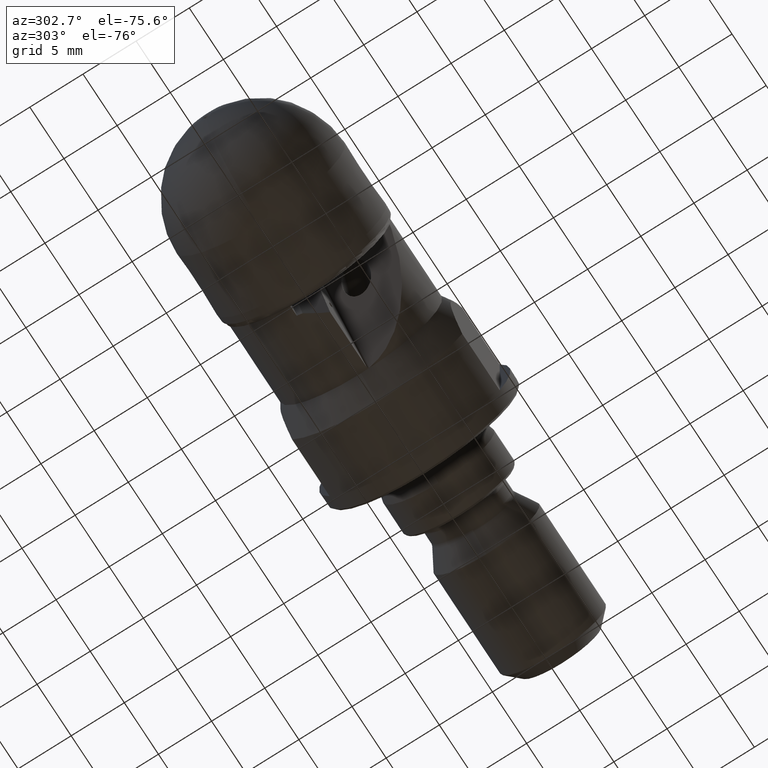
[diagram: clean part render]
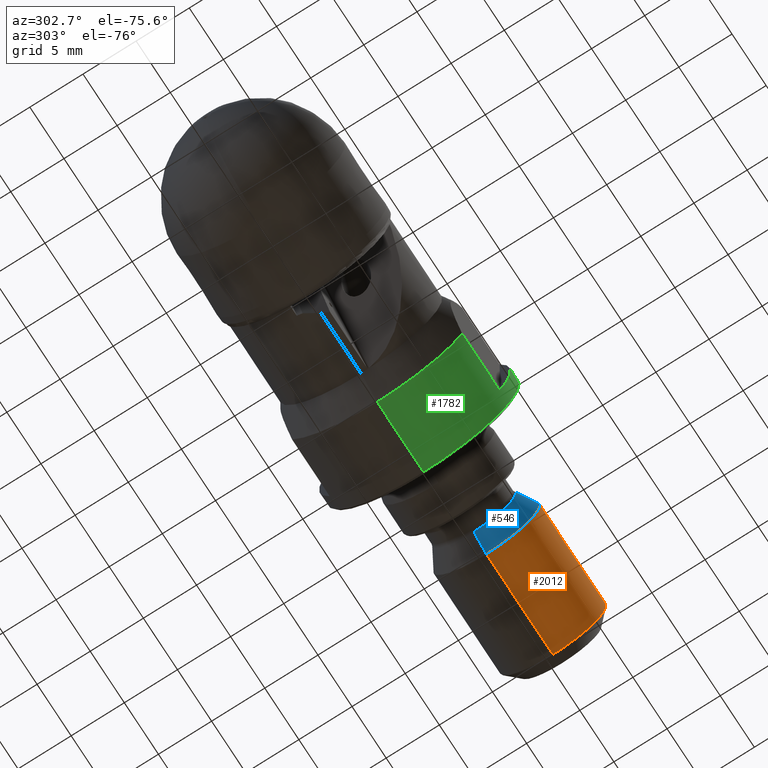
[diagram: same view with three faces highlighted in distinct colors, each labeled with its STEP entity id]
A machine part, auxiliary view with three faces highlighted in distinct colors.
Their STEP definitions:

[orange] entity #2012 — the highlighted cylindrical surface (partial cylindrical patch) has radius 5 mm, axis along (-1, 0, 0).
#12 = CARTESIAN_POINT ( 'NONE',  ( 51.06688199999999966, 0.0000000000000000000, 0.0000000000000000000 ) ) ;
#234 = CARTESIAN_POINT ( 'NONE',  ( -4.762142644779060241, 0.0000000000000000000, 5.000000000000000000 ) ) ;
#507 = VERTEX_POINT ( 'NONE', #1269 ) ;
#510 = DIRECTION ( 'NONE',  ( 0.0000000000000000000, 0.0000000000000000000, 1.000000000000000000 ) ) ;
#539 = DIRECTION ( 'NONE',  ( -1.000000000000000000, 0.0000000000000000000, 0.0000000000000000000 ) ) ;
#901 = VERTEX_POINT ( 'NONE', #3779 ) ;
#947 = ORIENTED_EDGE ( 'NONE', *, *, #3159, .T. ) ;
#988 = CYLINDRICAL_SURFACE ( 'NONE', #3228, 5.000000000000000000 ) ;
#989 = EDGE_LOOP ( 'NONE', ( #1167, #947, #1950, #2823 ) ) ;
#1036 = CIRCLE ( 'NONE', #3923, 5.000000000000000000 ) ;
#1089 = VECTOR ( 'NONE', #2411, 1000.000000000000000 ) ;
#1107 = CARTESIAN_POINT ( 'NONE',  ( -4.762142644779060241, 0.0000000000000000000, 0.0000000000000000000 ) ) ;
#1167 = ORIENTED_EDGE ( 'NONE', *, *, #3957, .F. ) ;
#1269 = CARTESIAN_POINT ( 'NONE',  ( 41.31688199999999966, 0.0000000000000000000, -5.000000000000000000 ) ) ;
#1282 = EDGE_CURVE ( 'NONE', #507, #3787, #2702, .T. ) ;
#1669 = EDGE_CURVE ( 'NONE', #2758, #3787, #3920, .T. ) ;
#1950 = ORIENTED_EDGE ( 'NONE', *, *, #1669, .T. ) ;
#2012 = ADVANCED_FACE ( 'NONE', ( #3103 ), #988, .T. ) ;
#2014 = CARTESIAN_POINT ( 'NONE',  ( 41.31688199999999966, 0.0000000000000000000, 0.0000000000000000000 ) ) ;
#2411 = DIRECTION ( 'NONE',  ( -1.000000000000000000, 0.0000000000000000000, 0.0000000000000000000 ) ) ;
#2676 = VECTOR ( 'NONE', #539, 1000.000000000000000 ) ;
#2702 = CIRCLE ( 'NONE', #3239, 5.000000000000000000 ) ;
#2730 = LINE ( 'NONE', #3950, #1089 ) ;
#2758 = VERTEX_POINT ( 'NONE', #2768 ) ;
#2768 = CARTESIAN_POINT ( 'NONE',  ( 51.06688199999999966, 0.0000000000000000000, 5.000000000000000000 ) ) ;
#2823 = ORIENTED_EDGE ( 'NONE', *, *, #1282, .F. ) ;
#3098 = DIRECTION ( 'NONE',  ( 0.0000000000000000000, 0.0000000000000000000, 1.000000000000000000 ) ) ;
#3103 = FACE_OUTER_BOUND ( 'NONE', #989, .T. ) ;
#3159 = EDGE_CURVE ( 'NONE', #901, #2758, #1036, .T. ) ;
#3228 = AXIS2_PLACEMENT_3D ( 'NONE', #1107, #3931, #510 ) ;
#3239 = AXIS2_PLACEMENT_3D ( 'NONE', #2014, #3865, #3578 ) ;
#3355 = DIRECTION ( 'NONE',  ( -1.000000000000000000, 0.0000000000000000000, 0.0000000000000000000 ) ) ;
#3541 = CARTESIAN_POINT ( 'NONE',  ( 41.31688199999999966, 6.123233995736766282E-16, 5.000000000000000000 ) ) ;
#3578 = DIRECTION ( 'NONE',  ( 0.0000000000000000000, 0.0000000000000000000, 1.000000000000000000 ) ) ;
#3779 = CARTESIAN_POINT ( 'NONE',  ( 51.06688199999999966, 6.123233995736766282E-16, -5.000000000000000000 ) ) ;
#3787 = VERTEX_POINT ( 'NONE', #3541 ) ;
#3865 = DIRECTION ( 'NONE',  ( -1.000000000000000000, 0.0000000000000000000, 0.0000000000000000000 ) ) ;
#3920 = LINE ( 'NONE', #234, #2676 ) ;
#3923 = AXIS2_PLACEMENT_3D ( 'NONE', #12, #3355, #3098 ) ;
#3931 = DIRECTION ( 'NONE',  ( -1.000000000000000000, 0.0000000000000000000, 0.0000000000000000000 ) ) ;
#3950 = CARTESIAN_POINT ( 'NONE',  ( -4.762142644779060241, 6.123233995736766282E-16, -5.000000000000000000 ) ) ;
#3957 = EDGE_CURVE ( 'NONE', #901, #507, #2730, .T. ) ;

[blue] entity #546 — the highlighted conical surface has half-angle 30 deg.
#15 = AXIS2_PLACEMENT_3D ( 'NONE', #2337, #509, #781 ) ;
#497 = VERTEX_POINT ( 'NONE', #1320 ) ;
#507 = VERTEX_POINT ( 'NONE', #1269 ) ;
#509 = DIRECTION ( 'NONE',  ( 1.000000000000000000, 0.0000000000000000000, 0.0000000000000000000 ) ) ;
#529 = FACE_OUTER_BOUND ( 'NONE', #3893, .T. ) ;
#540 = DIRECTION ( 'NONE',  ( 0.8660254037844382635, 6.123233995736773431E-17, 0.5000000000000005551 ) ) ;
#546 = ADVANCED_FACE ( 'NONE', ( #529 ), #1991, .T. ) ;
#580 = CIRCLE ( 'NONE', #708, 3.930384757729339817 ) ;
#617 = VECTOR ( 'NONE', #2875, 1000.000000000000114 ) ;
#623 = DIRECTION ( 'NONE',  ( -1.000000000000000000, 0.0000000000000000000, 0.0000000000000000000 ) ) ;
#692 = LINE ( 'NONE', #1917, #617 ) ;
#708 = AXIS2_PLACEMENT_3D ( 'NONE', #3731, #623, #930 ) ;
#747 = ORIENTED_EDGE ( 'NONE', *, *, #1282, .T. ) ;
#781 = DIRECTION ( 'NONE',  ( 0.0000000000000000000, 0.0000000000000000000, -1.000000000000000000 ) ) ;
#930 = DIRECTION ( 'NONE',  ( 0.0000000000000000000, 0.0000000000000000000, 1.000000000000000000 ) ) ;
#1082 = LINE ( 'NONE', #3298, #1904 ) ;
#1269 = CARTESIAN_POINT ( 'NONE',  ( 41.31688199999999966, 0.0000000000000000000, -5.000000000000000000 ) ) ;
#1282 = EDGE_CURVE ( 'NONE', #507, #3787, #2702, .T. ) ;
#1320 = CARTESIAN_POINT ( 'NONE',  ( 39.46425405583712376, 0.0000000000000000000, 3.930384757729339817 ) ) ;
#1416 = ORIENTED_EDGE ( 'NONE', *, *, #1497, .T. ) ;
#1497 = EDGE_CURVE ( 'NONE', #3278, #507, #692, .T. ) ;
#1695 = CARTESIAN_POINT ( 'NONE',  ( 39.46425405583712376, 4.813333112970779065E-16, -3.930384757729339817 ) ) ;
#1904 = VECTOR ( 'NONE', #540, 1000.000000000000114 ) ;
#1914 = EDGE_CURVE ( 'NONE', #3278, #497, #580, .T. ) ;
#1917 = CARTESIAN_POINT ( 'NONE',  ( 41.31688199999999966, 0.0000000000000000000, -5.000000000000000000 ) ) ;
#1991 = CONICAL_SURFACE ( 'NONE', #15, 5.000000000000000000, 0.5235987755982994818 ) ;
#2014 = CARTESIAN_POINT ( 'NONE',  ( 41.31688199999999966, 0.0000000000000000000, 0.0000000000000000000 ) ) ;
#2226 = ORIENTED_EDGE ( 'NONE', *, *, #2654, .F. ) ;
#2337 = CARTESIAN_POINT ( 'NONE',  ( 41.31688199999999966, 0.0000000000000000000, 0.0000000000000000000 ) ) ;
#2623 = ORIENTED_EDGE ( 'NONE', *, *, #1914, .F. ) ;
#2654 = EDGE_CURVE ( 'NONE', #497, #3787, #1082, .T. ) ;
#2702 = CIRCLE ( 'NONE', #3239, 5.000000000000000000 ) ;
#2875 = DIRECTION ( 'NONE',  ( 0.8660254037844382635, 0.0000000000000000000, -0.5000000000000005551 ) ) ;
#3239 = AXIS2_PLACEMENT_3D ( 'NONE', #2014, #3865, #3578 ) ;
#3278 = VERTEX_POINT ( 'NONE', #1695 ) ;
#3298 = CARTESIAN_POINT ( 'NONE',  ( 41.31688199999999966, 6.123233995736766282E-16, 5.000000000000000000 ) ) ;
#3541 = CARTESIAN_POINT ( 'NONE',  ( 41.31688199999999966, 6.123233995736766282E-16, 5.000000000000000000 ) ) ;
#3578 = DIRECTION ( 'NONE',  ( 0.0000000000000000000, 0.0000000000000000000, 1.000000000000000000 ) ) ;
#3731 = CARTESIAN_POINT ( 'NONE',  ( 39.46425405583712376, 0.0000000000000000000, 0.0000000000000000000 ) ) ;
#3787 = VERTEX_POINT ( 'NONE', #3541 ) ;
#3865 = DIRECTION ( 'NONE',  ( -1.000000000000000000, 0.0000000000000000000, 0.0000000000000000000 ) ) ;
#3893 = EDGE_LOOP ( 'NONE', ( #2226, #2623, #1416, #747 ) ) ;

[green] entity #1782 — the highlighted cylindrical surface (partial cylindrical patch) has radius 9 mm, axis along (-1, 0, 0).
#42 = ORIENTED_EDGE ( 'NONE', *, *, #3334, .T. ) ;
#76 = DIRECTION ( 'NONE',  ( -1.000000000000000000, 0.0000000000000000000, 0.0000000000000000000 ) ) ;
#124 = VECTOR ( 'NONE', #76, 1000.000000000000000 ) ;
#151 = LINE ( 'NONE', #2918, #3860 ) ;
#197 = EDGE_CURVE ( 'NONE', #1910, #3304, #3936, .T. ) ;
#210 = VECTOR ( 'NONE', #2644, 1000.000000000000000 ) ;
#226 = AXIS2_PLACEMENT_3D ( 'NONE', #950, #657, #2101 ) ;
#324 = CIRCLE ( 'NONE', #2555, 9.000000000000000000 ) ;
#336 = CYLINDRICAL_SURFACE ( 'NONE', #226, 9.000000000000000000 ) ;
#338 = CARTESIAN_POINT ( 'NONE',  ( -4.762142644779060241, 1.102182119232617714E-15, -9.000000000000000000 ) ) ;
#354 = CARTESIAN_POINT ( 'NONE',  ( 32.11688199999999682, 0.0000000000000000000, 0.0000000000000000000 ) ) ;
#378 = LINE ( 'NONE', #338, #124 ) ;
#410 = VECTOR ( 'NONE', #2971, 1000.000000000000000 ) ;
#648 = VERTEX_POINT ( 'NONE', #2070 ) ;
#657 = DIRECTION ( 'NONE',  ( -1.000000000000000000, 0.0000000000000000000, 0.0000000000000000000 ) ) ;
#667 = ORIENTED_EDGE ( 'NONE', *, *, #1873, .F. ) ;
#868 = LINE ( 'NONE', #1730, #410 ) ;
#904 = FACE_OUTER_BOUND ( 'NONE', #2292, .T. ) ;
#923 = ORIENTED_EDGE ( 'NONE', *, *, #1389, .F. ) ;
#949 = DIRECTION ( 'NONE',  ( 0.0000000000000000000, 0.0000000000000000000, -1.000000000000000000 ) ) ;
#950 = CARTESIAN_POINT ( 'NONE',  ( -4.762142644779060241, 0.0000000000000000000, 0.0000000000000000000 ) ) ;
#1003 = VERTEX_POINT ( 'NONE', #2075 ) ;
#1043 = AXIS2_PLACEMENT_3D ( 'NONE', #3094, #1870, #949 ) ;
#1075 = VERTEX_POINT ( 'NONE', #1803 ) ;
#1129 = ORIENTED_EDGE ( 'NONE', *, *, #2853, .T. ) ;
#1239 = DIRECTION ( 'NONE',  ( 0.0000000000000000000, 0.0000000000000000000, 1.000000000000000000 ) ) ;
#1354 = DIRECTION ( 'NONE',  ( -1.000000000000000000, 0.0000000000000000000, 0.0000000000000000000 ) ) ;
#1368 = CARTESIAN_POINT ( 'NONE',  ( 25.31688199999999966, 0.0000000000000000000, -9.000000000000000000 ) ) ;
#1389 = EDGE_CURVE ( 'NONE', #648, #2564, #378, .T. ) ;
#1425 = LINE ( 'NONE', #3868, #210 ) ;
#1470 = DIRECTION ( 'NONE',  ( 0.0000000000000000000, 0.0000000000000000000, 1.000000000000000000 ) ) ;
#1511 = CIRCLE ( 'NONE', #2542, 9.000000000000000000 ) ;
#1670 = VERTEX_POINT ( 'NONE', #1728 ) ;
#1710 = CARTESIAN_POINT ( 'NONE',  ( 25.31688199999999966, 0.0000000000000000000, 0.0000000000000000000 ) ) ;
#1728 = CARTESIAN_POINT ( 'NONE',  ( 32.11688199999999682, 0.0000000000000000000, 9.000000000000000000 ) ) ;
#1730 = CARTESIAN_POINT ( 'NONE',  ( -4.762142644779060241, -8.000000000000000000, -4.123105625617659697 ) ) ;
#1733 = CARTESIAN_POINT ( 'NONE',  ( 25.31688199999999966, 0.0000000000000000000, 0.0000000000000000000 ) ) ;
#1782 = ADVANCED_FACE ( 'NONE', ( #904 ), #336, .T. ) ;
#1803 = CARTESIAN_POINT ( 'NONE',  ( 25.31688199999999966, -8.000000000000000000, 4.123105625617659697 ) ) ;
#1818 = CARTESIAN_POINT ( 'NONE',  ( 30.81688200000000322, -8.000000000000000000, 4.123105625617659697 ) ) ;
#1834 = AXIS2_PLACEMENT_3D ( 'NONE', #354, #2184, #2205 ) ;
#1870 = DIRECTION ( 'NONE',  ( 1.000000000000000000, 0.0000000000000000000, 0.0000000000000000000 ) ) ;
#1873 = EDGE_CURVE ( 'NONE', #2564, #1003, #324, .T. ) ;
#1910 = VERTEX_POINT ( 'NONE', #1818 ) ;
#2070 = CARTESIAN_POINT ( 'NONE',  ( 32.11688199999999682, 1.102182119232617714E-15, -9.000000000000000000 ) ) ;
#2075 = CARTESIAN_POINT ( 'NONE',  ( 25.31688199999999966, -8.000000000000000000, -4.123105625617658809 ) ) ;
#2101 = DIRECTION ( 'NONE',  ( 0.0000000000000000000, 0.0000000000000000000, 1.000000000000000000 ) ) ;
#2184 = DIRECTION ( 'NONE',  ( -1.000000000000000000, 0.0000000000000000000, 0.0000000000000000000 ) ) ;
#2205 = DIRECTION ( 'NONE',  ( 0.0000000000000000000, 0.0000000000000000000, 1.000000000000000000 ) ) ;
#2292 = EDGE_LOOP ( 'NONE', ( #923, #1129, #42, #3203, #3919, #3746, #3129, #667 ) ) ;
#2488 = CARTESIAN_POINT ( 'NONE',  ( 30.81688200000000322, -8.000000000000000000, -4.123105625617659697 ) ) ;
#2542 = AXIS2_PLACEMENT_3D ( 'NONE', #1710, #3672, #1239 ) ;
#2555 = AXIS2_PLACEMENT_3D ( 'NONE', #1733, #3616, #1470 ) ;
#2564 = VERTEX_POINT ( 'NONE', #1368 ) ;
#2644 = DIRECTION ( 'NONE',  ( 1.000000000000000000, -0.0000000000000000000, -0.0000000000000000000 ) ) ;
#2707 = EDGE_CURVE ( 'NONE', #1075, #3701, #1511, .T. ) ;
#2853 = EDGE_CURVE ( 'NONE', #648, #1670, #3577, .T. ) ;
#2918 = CARTESIAN_POINT ( 'NONE',  ( -4.762142644779060241, 0.0000000000000000000, 9.000000000000000000 ) ) ;
#2971 = DIRECTION ( 'NONE',  ( -1.000000000000000000, 0.0000000000000000000, 0.0000000000000000000 ) ) ;
#3094 = CARTESIAN_POINT ( 'NONE',  ( 30.81688200000000322, 0.0000000000000000000, 0.0000000000000000000 ) ) ;
#3129 = ORIENTED_EDGE ( 'NONE', *, *, #3638, .T. ) ;
#3203 = ORIENTED_EDGE ( 'NONE', *, *, #2707, .F. ) ;
#3254 = CARTESIAN_POINT ( 'NONE',  ( 25.31688199999999966, 1.102182119232617714E-15, 9.000000000000000000 ) ) ;
#3304 = VERTEX_POINT ( 'NONE', #2488 ) ;
#3334 = EDGE_CURVE ( 'NONE', #1670, #3701, #151, .T. ) ;
#3577 = CIRCLE ( 'NONE', #1834, 9.000000000000000000 ) ;
#3616 = DIRECTION ( 'NONE',  ( -1.000000000000000000, 0.0000000000000000000, 0.0000000000000000000 ) ) ;
#3638 = EDGE_CURVE ( 'NONE', #3304, #1003, #868, .T. ) ;
#3672 = DIRECTION ( 'NONE',  ( -1.000000000000000000, 0.0000000000000000000, 0.0000000000000000000 ) ) ;
#3701 = VERTEX_POINT ( 'NONE', #3254 ) ;
#3746 = ORIENTED_EDGE ( 'NONE', *, *, #197, .T. ) ;
#3860 = VECTOR ( 'NONE', #1354, 1000.000000000000000 ) ;
#3868 = CARTESIAN_POINT ( 'NONE',  ( -4.762142644779060241, -8.000000000000000000, 4.123105625617659697 ) ) ;
#3874 = EDGE_CURVE ( 'NONE', #1075, #1910, #1425, .T. ) ;
#3919 = ORIENTED_EDGE ( 'NONE', *, *, #3874, .T. ) ;
#3936 = CIRCLE ( 'NONE', #1043, 9.000000000000000000 ) ;